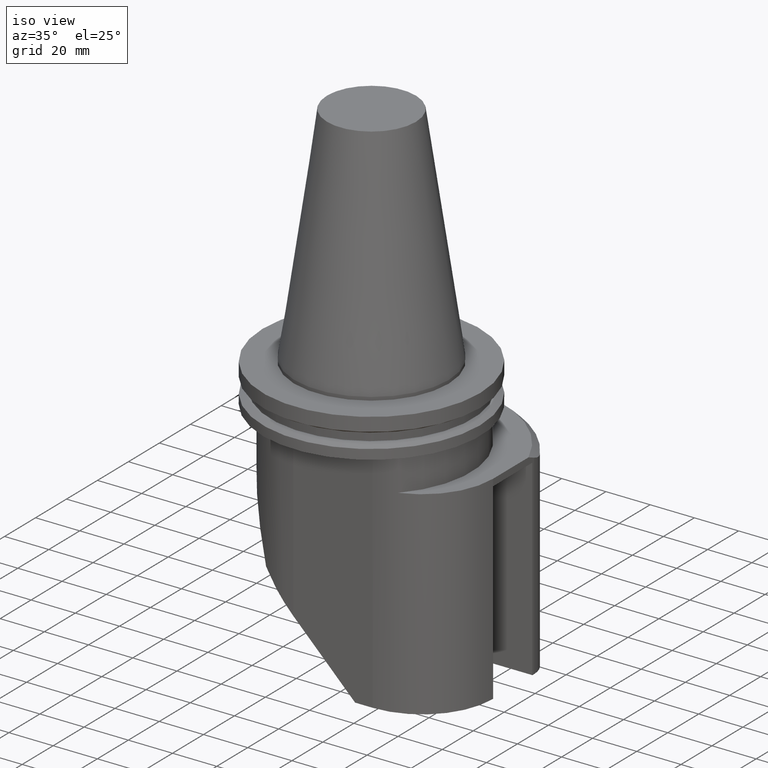
[diagram: clean part render]
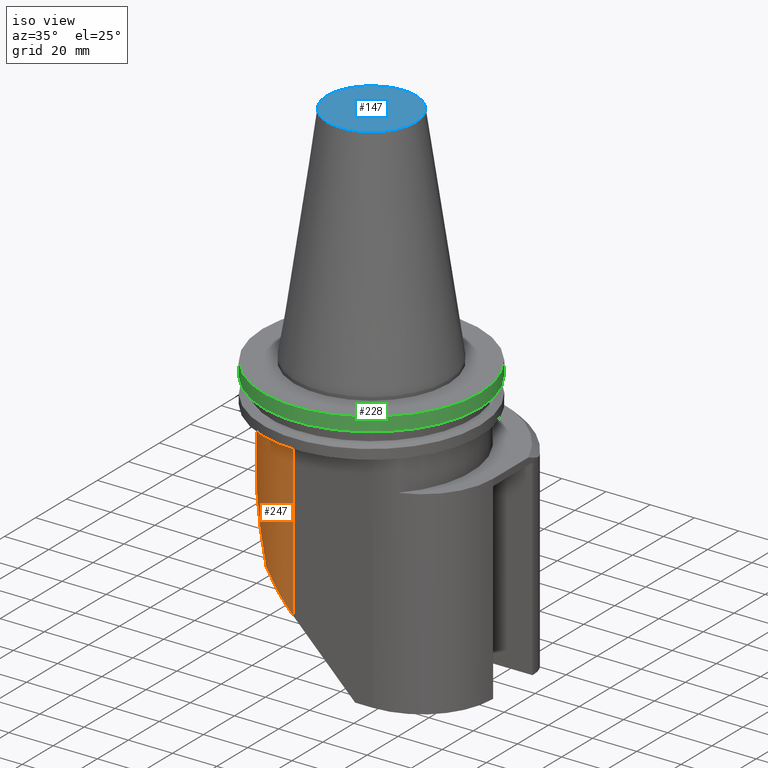
[diagram: same view with three faces highlighted in distinct colors, each labeled with its STEP entity id]
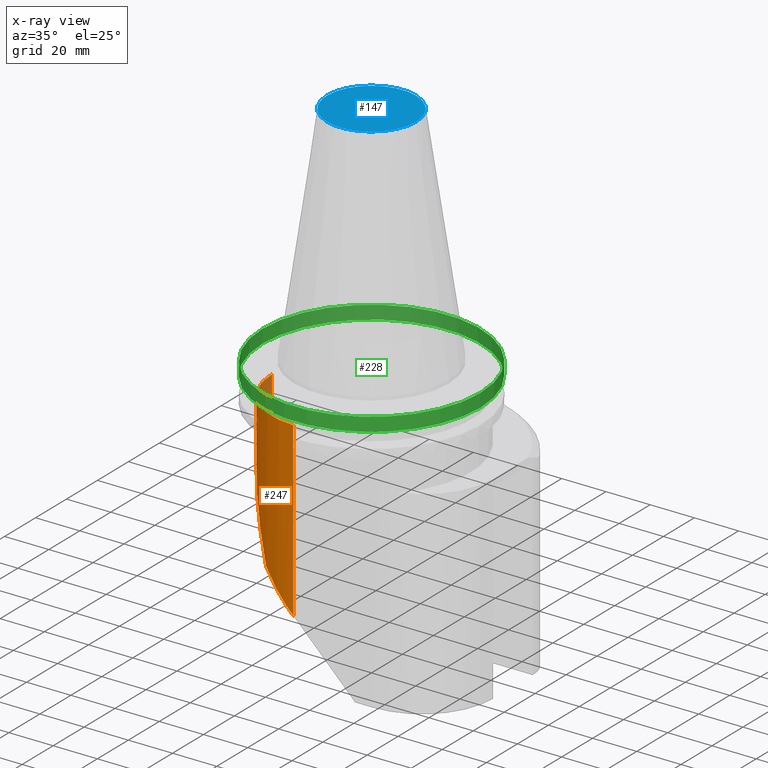
[diagram: x-ray of the same camera — body ghosted, the three highlighted faces saturated]
A machine part, iso view with three faces highlighted in distinct colors.
The next image is the same camera in x-ray (body ghosted, the three faces saturated) — at least one of them is partly hidden behind the body in this view.
Their STEP definitions:

[orange] entity #247 — the highlighted cylindrical surface (partial cylindrical patch) has radius 32 mm, axis along (-0, 0, 1).
#158=EDGE_CURVE('Unnamed[1]',#415,#416,#417,.T.);
#214=EDGE_CURVE('Unnamed[1]',#458,#487,#502,.T.);
#235=EDGE_CURVE('Unnamed[1]',#515,#416,#530,.T.);
#247=ADVANCED_FACE('Unnamed[1]',(#545),#546,.T.);
#269=EDGE_CURVE('Unnamed[1]',#487,#415,#575,.T.);
#290=EDGE_CURVE('Unnamed[1]',#458,#515,#599,.T.);
#415=VERTEX_POINT('',#752);
#416=VERTEX_POINT('',#753);
#417=LINE('',#754,#755);
#458=VERTEX_POINT('',#829);
#487=VERTEX_POINT('',#867);
#502=LINE('',#886,#887);
#515=VERTEX_POINT('',#908);
#530=ELLIPSE('',#928,45.2548339959449,32.0);
#545=FACE_OUTER_BOUND('',#958,.T.);
#546=CYLINDRICAL_SURFACE('',#959,32.0);
#575=CIRCLE('',#1000,32.0);
#599=ELLIPSE('',#1046,93.5617408052192,32.0);
#752=CARTESIAN_POINT('',(-13.0000000000003,-32.0000000000003,-19.05));
#753=CARTESIAN_POINT('',(-13.0000000000003,-32.0000000000003,-96.9999999999997));
#754=CARTESIAN_POINT('',(-13.0000000000003,-32.0000000000003,-315.0));
#755=VECTOR('',#1215,1.0);
#829=CARTESIAN_POINT('',(-45.0000000000003,6.12323399573683E-015,-34.9999999999997));
#867=CARTESIAN_POINT('',(-45.0000000000003,7.09988981805683E-015,-19.05));
#886=CARTESIAN_POINT('',(-45.0000000000016,8.41629461719802E-013,-315.0));
#887=VECTOR('',#1307,1.0);
#908=CARTESIAN_POINT('',(-27.832396192359,-28.3548941664913,-82.1676038076372));
#928=AXIS2_PLACEMENT_3D('',#1335,#1336,#1337);
#958=EDGE_LOOP('',(#1353,#1354,#1355,#1356,#1357));
#959=AXIS2_PLACEMENT_3D('',#1358,#1359,#1360);
#1000=AXIS2_PLACEMENT_3D('',#1401,#1402,#1403);
#1046=AXIS2_PLACEMENT_3D('',#1427,#1428,#1429);
#1215=DIRECTION('',(1.22464679914735E-016,-6.12323399573677E-017,-1.0));
#1307=DIRECTION('',(-1.22464679914735E-016,6.12323399573677E-017,1.0));
#1335=CARTESIAN_POINT('',(-13.0000000000003,-2.30925151160759E-013,-96.9999999999997));
#1336=DIRECTION('',(0.707106781186638,-8.65956056235714E-017,0.707106781186458));
#1337=DIRECTION('',(-0.707106781186458,2.59786816870626E-016,0.707106781186638));
#1353=ORIENTED_EDGE('',*,*,#290,.T.);
#1354=ORIENTED_EDGE('',*,*,#235,.T.);
#1355=ORIENTED_EDGE('',*,*,#158,.F.);
#1356=ORIENTED_EDGE('',*,*,#269,.F.);
#1357=ORIENTED_EDGE('',*,*,#214,.F.);
#1358=CARTESIAN_POINT('',(-13.0000000000003,-2.44273801271466E-013,-315.0));
#1359=DIRECTION('',(-1.22464679914735E-016,6.12323399573677E-017,1.0));
#1360=DIRECTION('',(3.06161699786838E-016,1.0,-6.12323399573677E-017));
#1401=CARTESIAN_POINT('',(-13.0000000000003,-2.26152090261083E-013,-19.05));
#1402=DIRECTION('',(1.22464679914735E-016,-1.22464679914735E-016,1.0));
#1403=DIRECTION('',(3.06161699786838E-016,1.0,1.22464679914735E-016));
#1427=CARTESIAN_POINT('',(-13.0000000000003,-2.32512249167346E-013,-122.919277422548));
#1428=DIRECTION('',(0.939692620785909,-1.51676040345793E-016,0.342020143325668));
#1429=DIRECTION('',(-0.342020143325668,1.62253046453317E-016,0.939692620785909));

[blue] entity #147 — the highlighted planar face has unit normal (0, 0, 1).
#147=ADVANCED_FACE('Unnamed[1]',(#399),#400,.T.);
#188=EDGE_CURVE('Unnamed[1]',#464,#464,#465,.T.);
#399=FACE_OUTER_BOUND('',#728,.T.);
#400=PLANE('',#729);
#464=VERTEX_POINT('',#837);
#465=CIRCLE('',#838,20.1083333297217);
#728=EDGE_LOOP('',(#1199));
#729=AXIS2_PLACEMENT_3D('',#1200,#1201,#1202);
#837=CARTESIAN_POINT('',(-20.1083333297217,9.91504664693331E-015,101.6));
#838=AXIS2_PLACEMENT_3D('',#1260,#1261,#1262);
#1199=ORIENTED_EDGE('',*,*,#188,.F.);
#1200=CARTESIAN_POINT('',(-10.0541666648609,8.06812619330094E-015,101.6));
#1201=DIRECTION('',(1.29096471596635E-015,6.12323399573674E-017,1.0));
#1202=DIRECTION('',(1.0,-1.83697019872103E-016,-1.29096471596635E-015));
#1260=CARTESIAN_POINT('',(-1.52488750347207E-014,6.22120573966856E-015,101.6));
#1261=DIRECTION('',(-1.28076709777704E-015,-6.12323399573675E-017,-1.0));
#1262=DIRECTION('',(-1.0,1.83697019872103E-016,1.28076709777704E-015));

[green] entity #228 — the highlighted cylindrical surface (bore or boss wall) has radius 49.2125 mm, axis along (-0, -0, -1).
#228=ADVANCED_FACE('Unnamed[1]',(#519,#520),#521,.T.);
#286=EDGE_CURVE('Unnamed[1]',#594,#594,#595,.T.);
#336=EDGE_CURVE('Unnamed[1]',#657,#657,#658,.T.);
#519=FACE_BOUND('',#914,.T.);
#520=FACE_BOUND('',#915,.T.);
#521=CYLINDRICAL_SURFACE('',#916,49.2125);
#594=VERTEX_POINT('',#1038);
#595=CIRCLE('',#1039,49.2125);
#657=VERTEX_POINT('',#1137);
#658=CIRCLE('',#1138,49.2125);
#914=EDGE_LOOP('',(#1319));
#915=EDGE_LOOP('',(#1320));
#916=AXIS2_PLACEMENT_3D('',#1321,#1322,#1323);
#1038=CARTESIAN_POINT('',(-49.2125000000001,8.94834108051984E-015,-1.49999999999994));
#1039=AXIS2_PLACEMENT_3D('',#1423,#1424,#1425);
#1137=CARTESIAN_POINT('',(-49.2125000000001,8.57520141253698E-015,-7.59383322999994));
#1138=AXIS2_PLACEMENT_3D('',#1498,#1499,#1500);
#1319=ORIENTED_EDGE('',*,*,#336,.F.);
#1320=ORIENTED_EDGE('',*,*,#286,.T.);
#1321=CARTESIAN_POINT('',(-1.51198353365696E-013,-2.78418343927456E-016,-4.546916615));
#1322=DIRECTION('',(-1.28076709777704E-015,-6.12323399573674E-017,-1.0));
#1323=DIRECTION('',(-1.0,1.83697019872103E-016,1.28076709777704E-015));
#1423=CARTESIAN_POINT('',(-1.47295962815533E-013,-9.18485099360245E-017,-1.5));
#1424=DIRECTION('',(-1.28076709777704E-015,-6.12323399573674E-017,-1.0));
#1425=DIRECTION('',(-1.0,1.83697019872103E-016,1.28076709777704E-015));
#1498=CARTESIAN_POINT('',(-1.55100743915858E-013,-4.64988177918887E-016,-7.59383323));
#1499=DIRECTION('',(-1.28076709777704E-015,-6.12323399573674E-017,-1.0));
#1500=DIRECTION('',(-1.0,1.83697019872103E-016,1.28076709777704E-015));